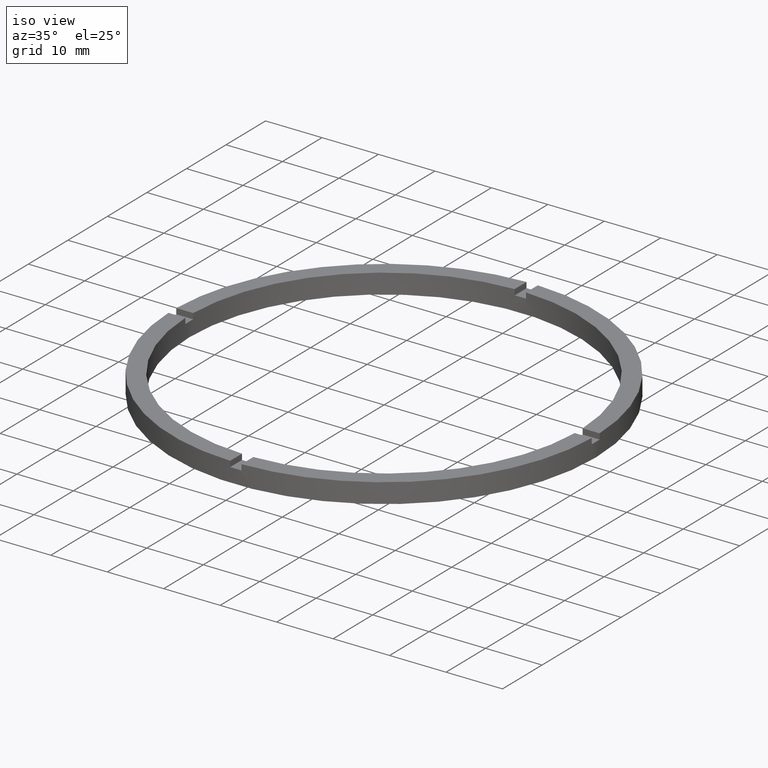
[diagram: clean part render]
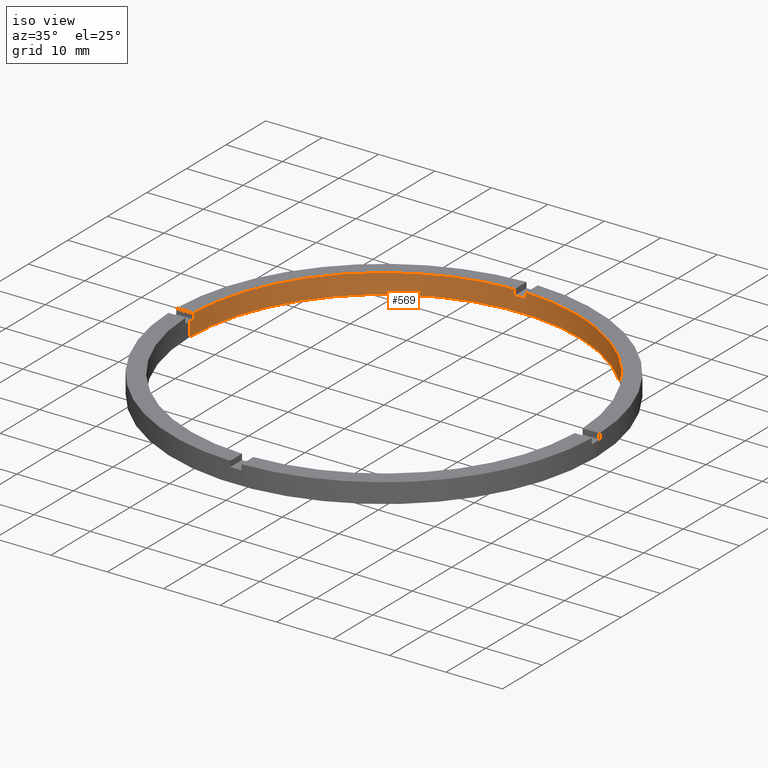
[diagram: same view with one face highlighted and labeled with its STEP entity id]
A machine part, iso view. The second image highlights one B-rep face of the part: STEP entity #569.
In plain terms, the highlighted cylindrical surface (partial cylindrical patch) has radius 34.5 mm, axis along (-0, -0, -1).
Its self-contained STEP definition (entity closure, byte-faithful):
#1 = CIRCLE ( 'NONE', #656, 34.49999999999999289 ) ;
#15 = VECTOR ( 'NONE', #369, 1000.000000000000000 ) ;
#20 = VECTOR ( 'NONE', #610, 1000.000000000000000 ) ;
#22 = CARTESIAN_POINT ( 'NONE',  ( 0.000000000000000000, 0.000000000000000000, 2.500000000000000000 ) ) ;
#23 = VECTOR ( 'NONE', #537, 1000.000000000000000 ) ;
#29 = DIRECTION ( 'NONE',  ( 1.000000000000000000, 0.000000000000000000, 0.000000000000000000 ) ) ;
#31 = LINE ( 'NONE', #144, #23 ) ;
#35 = AXIS2_PLACEMENT_3D ( 'NONE', #497, #668, #439 ) ;
#40 = EDGE_CURVE ( 'NONE', #493, #231, #58, .T. ) ;
#53 = VECTOR ( 'NONE', #619, 1000.000000000000000 ) ;
#58 = LINE ( 'NONE', #397, #53 ) ;
#72 = CARTESIAN_POINT ( 'NONE',  ( 0.000000000000000000, 0.000000000000000000, 3.500000000000000000 ) ) ;
#81 = CARTESIAN_POINT ( 'NONE',  ( 34.48550420104076153, 0.9999999999998423483, 2.500000000000000000 ) ) ;
#111 = VECTOR ( 'NONE', #612, 1000.000000000000000 ) ;
#121 = DIRECTION ( 'NONE',  ( 1.000000000000000000, 0.000000000000000000, 0.000000000000000000 ) ) ;
#144 = CARTESIAN_POINT ( 'NONE',  ( 0.9999999999999746869, 34.48550420104076153, 3.500000000000000000 ) ) ;
#146 = ORIENTED_EDGE ( 'NONE', *, *, #714, .T. ) ;
#147 = ORIENTED_EDGE ( 'NONE', *, *, #255, .F. ) ;
#159 = CARTESIAN_POINT ( 'NONE',  ( 34.48550420104076153, 0.9999999999998423483, 3.500000000000000000 ) ) ;
#205 = AXIS2_PLACEMENT_3D ( 'NONE', #573, #413, #121 ) ;
#207 = AXIS2_PLACEMENT_3D ( 'NONE', #276, #590, #753 ) ;
#212 = EDGE_CURVE ( 'NONE', #613, #491, #365, .T. ) ;
#231 = VERTEX_POINT ( 'NONE', #652 ) ;
#235 = ORIENTED_EDGE ( 'NONE', *, *, #546, .F. ) ;
#245 = ORIENTED_EDGE ( 'NONE', *, *, #330, .T. ) ;
#251 = ORIENTED_EDGE ( 'NONE', *, *, #212, .F. ) ;
#255 = EDGE_CURVE ( 'NONE', #427, #512, #547, .T. ) ;
#256 = CIRCLE ( 'NONE', #572, 34.49999999999999289 ) ;
#265 = CARTESIAN_POINT ( 'NONE',  ( -34.49999999999999289, 0.000000000000000000, 0.000000000000000000 ) ) ;
#269 = VECTOR ( 'NONE', #689, 1000.000000000000000 ) ;
#276 = CARTESIAN_POINT ( 'NONE',  ( 0.000000000000000000, 0.000000000000000000, 2.500000000000000000 ) ) ;
#277 = CIRCLE ( 'NONE', #207, 34.49999999999999289 ) ;
#287 = CARTESIAN_POINT ( 'NONE',  ( 34.49999999999999289, 4.225031457058367344E-15, 2.500000000000000000 ) ) ;
#304 = ORIENTED_EDGE ( 'NONE', *, *, #40, .F. ) ;
#309 = VERTEX_POINT ( 'NONE', #328 ) ;
#328 = CARTESIAN_POINT ( 'NONE',  ( 0.9999999999999746869, 34.48550420104076153, 3.500000000000000000 ) ) ;
#330 = EDGE_CURVE ( 'NONE', #691, #412, #1, .T. ) ;
#342 = VERTEX_POINT ( 'NONE', #429 ) ;
#353 = EDGE_CURVE ( 'NONE', #613, #576, #277, .T. ) ;
#362 = CIRCLE ( 'NONE', #205, 34.49999999999999289 ) ;
#365 = LINE ( 'NONE', #479, #15 ) ;
#369 = DIRECTION ( 'NONE',  ( 0.000000000000000000, 0.000000000000000000, 1.000000000000000000 ) ) ;
#385 = CARTESIAN_POINT ( 'NONE',  ( -34.48550420104076153, 0.9999999999999731326, 2.500000000000000000 ) ) ;
#392 = EDGE_LOOP ( 'NONE', ( #304, #435, #147, #393, #235, #245, #486, #146, #251, #759, #725, #399 ) ) ;
#393 = ORIENTED_EDGE ( 'NONE', *, *, #434, .T. ) ;
#397 = CARTESIAN_POINT ( 'NONE',  ( 34.49999999999999289, 4.225031457058367344E-15, 3.500000000000000000 ) ) ;
#399 = ORIENTED_EDGE ( 'NONE', *, *, #524, .F. ) ;
#412 = VERTEX_POINT ( 'NONE', #701 ) ;
#413 = DIRECTION ( 'NONE',  ( 0.000000000000000000, 0.000000000000000000, 1.000000000000000000 ) ) ;
#427 = VERTEX_POINT ( 'NONE', #159 ) ;
#429 = CARTESIAN_POINT ( 'NONE',  ( -1.000000000000025313, 34.48550420104075442, 3.500000000000000000 ) ) ;
#432 = CARTESIAN_POINT ( 'NONE',  ( -34.48550420104076153, 0.9999999999999731326, 3.500000000000000000 ) ) ;
#434 = EDGE_CURVE ( 'NONE', #427, #309, #256, .T. ) ;
#435 = ORIENTED_EDGE ( 'NONE', *, *, #635, .T. ) ;
#439 = DIRECTION ( 'NONE',  ( 1.000000000000000000, 0.000000000000000000, 0.000000000000000000 ) ) ;
#443 = DIRECTION ( 'NONE',  ( 1.000000000000000000, 0.000000000000000000, 0.000000000000000000 ) ) ;
#458 = DIRECTION ( 'NONE',  ( 0.000000000000000000, -0.000000000000000000, 1.000000000000000000 ) ) ;
#478 = EDGE_CURVE ( 'NONE', #342, #412, #528, .T. ) ;
#479 = CARTESIAN_POINT ( 'NONE',  ( -34.48550420104076153, 0.9999999999999731326, 3.500000000000000000 ) ) ;
#486 = ORIENTED_EDGE ( 'NONE', *, *, #478, .F. ) ;
#490 = DIRECTION ( 'NONE',  ( -1.000000000000000000, 0.000000000000000000, 0.000000000000000000 ) ) ;
#491 = VERTEX_POINT ( 'NONE', #432 ) ;
#493 = VERTEX_POINT ( 'NONE', #287 ) ;
#496 = VERTEX_POINT ( 'NONE', #265 ) ;
#497 = CARTESIAN_POINT ( 'NONE',  ( 0.000000000000000000, 0.000000000000000000, 0.000000000000000000 ) ) ;
#512 = VERTEX_POINT ( 'NONE', #81 ) ;
#524 = EDGE_CURVE ( 'NONE', #231, #496, #778, .T. ) ;
#528 = LINE ( 'NONE', #543, #20 ) ;
#537 = DIRECTION ( 'NONE',  ( 0.000000000000000000, 0.000000000000000000, 1.000000000000000000 ) ) ;
#543 = CARTESIAN_POINT ( 'NONE',  ( -1.000000000000025313, 34.48550420104075442, 3.500000000000000000 ) ) ;
#544 = AXIS2_PLACEMENT_3D ( 'NONE', #680, #545, #490 ) ;
#545 = DIRECTION ( 'NONE',  ( -0.000000000000000000, -0.000000000000000000, -1.000000000000000000 ) ) ;
#546 = EDGE_CURVE ( 'NONE', #691, #309, #31, .T. ) ;
#547 = LINE ( 'NONE', #633, #269 ) ;
#561 = FACE_OUTER_BOUND ( 'NONE', #392, .T. ) ;
#565 = CARTESIAN_POINT ( 'NONE',  ( 0.9999999999999746869, 34.48550420104076153, 2.500000000000000000 ) ) ;
#567 = CYLINDRICAL_SURFACE ( 'NONE', #544, 34.49999999999999289 ) ;
#569 = ADVANCED_FACE ( 'NONE', ( #561 ), #567, .F. ) ;
#572 = AXIS2_PLACEMENT_3D ( 'NONE', #72, #731, #443 ) ;
#573 = CARTESIAN_POINT ( 'NONE',  ( 0.000000000000000000, 0.000000000000000000, 3.500000000000000000 ) ) ;
#576 = VERTEX_POINT ( 'NONE', #757 ) ;
#587 = EDGE_CURVE ( 'NONE', #576, #496, #622, .T. ) ;
#590 = DIRECTION ( 'NONE',  ( 0.000000000000000000, 0.000000000000000000, 1.000000000000000000 ) ) ;
#609 = CIRCLE ( 'NONE', #658, 34.49999999999999289 ) ;
#610 = DIRECTION ( 'NONE',  ( -0.000000000000000000, -0.000000000000000000, -1.000000000000000000 ) ) ;
#612 = DIRECTION ( 'NONE',  ( -0.000000000000000000, -0.000000000000000000, -1.000000000000000000 ) ) ;
#613 = VERTEX_POINT ( 'NONE', #385 ) ;
#619 = DIRECTION ( 'NONE',  ( -0.000000000000000000, -0.000000000000000000, -1.000000000000000000 ) ) ;
#622 = LINE ( 'NONE', #769, #111 ) ;
#633 = CARTESIAN_POINT ( 'NONE',  ( 34.48550420104076153, 0.9999999999998423483, 3.500000000000000000 ) ) ;
#635 = EDGE_CURVE ( 'NONE', #493, #512, #609, .T. ) ;
#652 = CARTESIAN_POINT ( 'NONE',  ( 34.49999999999999289, 4.225031457058367344E-15, 0.000000000000000000 ) ) ;
#656 = AXIS2_PLACEMENT_3D ( 'NONE', #22, #458, #29 ) ;
#658 = AXIS2_PLACEMENT_3D ( 'NONE', #673, #711, #708 ) ;
#668 = DIRECTION ( 'NONE',  ( 0.000000000000000000, 0.000000000000000000, 1.000000000000000000 ) ) ;
#673 = CARTESIAN_POINT ( 'NONE',  ( 0.000000000000000000, 0.000000000000000000, 2.500000000000000000 ) ) ;
#680 = CARTESIAN_POINT ( 'NONE',  ( 0.000000000000000000, 0.000000000000000000, 3.500000000000000000 ) ) ;
#689 = DIRECTION ( 'NONE',  ( -0.000000000000000000, -0.000000000000000000, -1.000000000000000000 ) ) ;
#691 = VERTEX_POINT ( 'NONE', #565 ) ;
#701 = CARTESIAN_POINT ( 'NONE',  ( -1.000000000000025313, 34.48550420104075442, 2.500000000000000000 ) ) ;
#708 = DIRECTION ( 'NONE',  ( 1.000000000000000000, 0.000000000000000000, 0.000000000000000000 ) ) ;
#711 = DIRECTION ( 'NONE',  ( 0.000000000000000000, 0.000000000000000000, 1.000000000000000000 ) ) ;
#714 = EDGE_CURVE ( 'NONE', #342, #491, #362, .T. ) ;
#725 = ORIENTED_EDGE ( 'NONE', *, *, #587, .T. ) ;
#731 = DIRECTION ( 'NONE',  ( 0.000000000000000000, 0.000000000000000000, 1.000000000000000000 ) ) ;
#753 = DIRECTION ( 'NONE',  ( 1.000000000000000000, 0.000000000000000000, 0.000000000000000000 ) ) ;
#757 = CARTESIAN_POINT ( 'NONE',  ( -34.49999999999999289, 0.000000000000000000, 2.500000000000000000 ) ) ;
#759 = ORIENTED_EDGE ( 'NONE', *, *, #353, .T. ) ;
#769 = CARTESIAN_POINT ( 'NONE',  ( -34.49999999999999289, 0.000000000000000000, 3.500000000000000000 ) ) ;
#778 = CIRCLE ( 'NONE', #35, 34.49999999999999289 ) ;